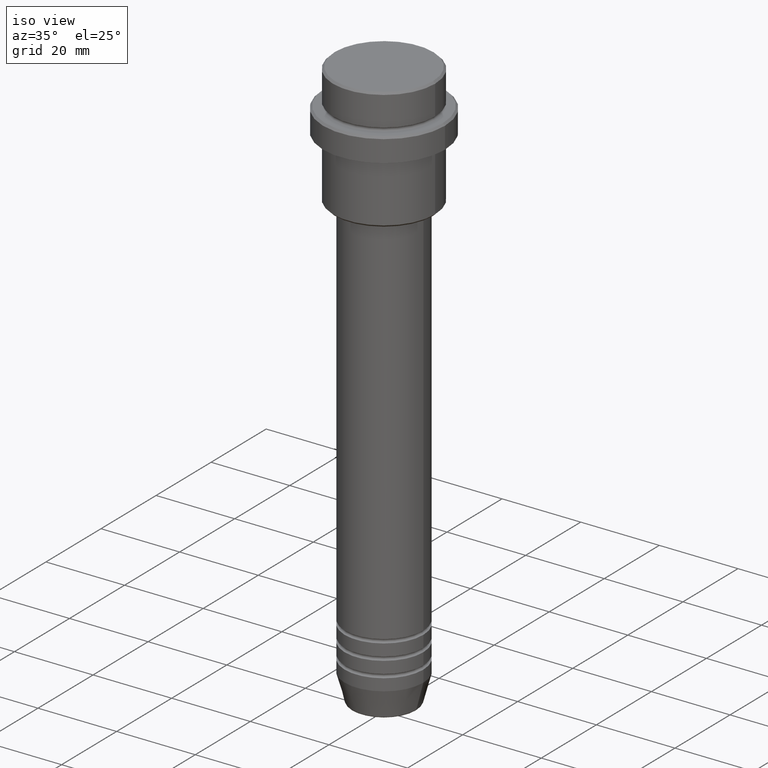
[diagram: clean part render]
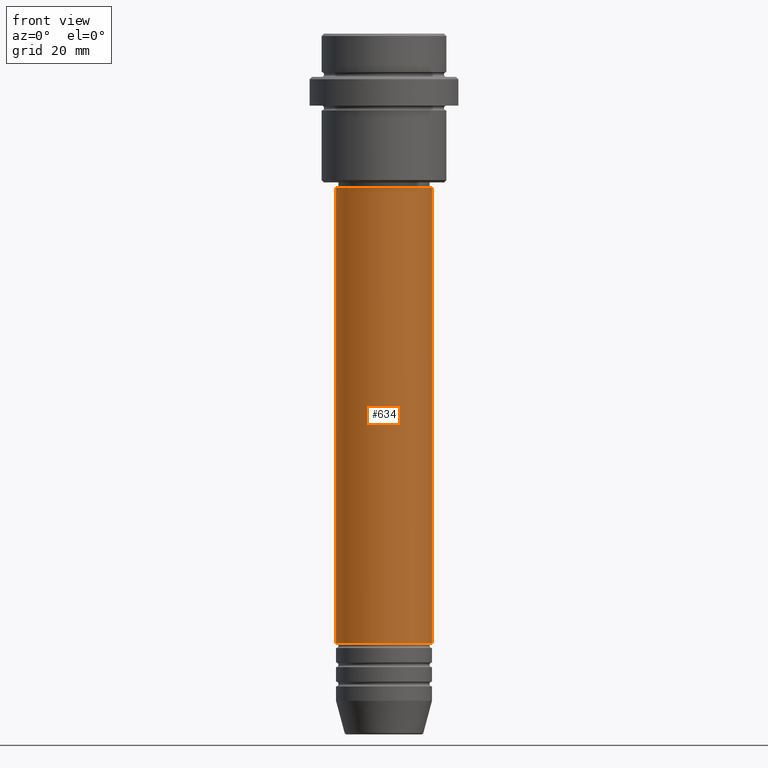
[diagram: tour spotlight — one face highlighted and labeled with its STEP entity id]
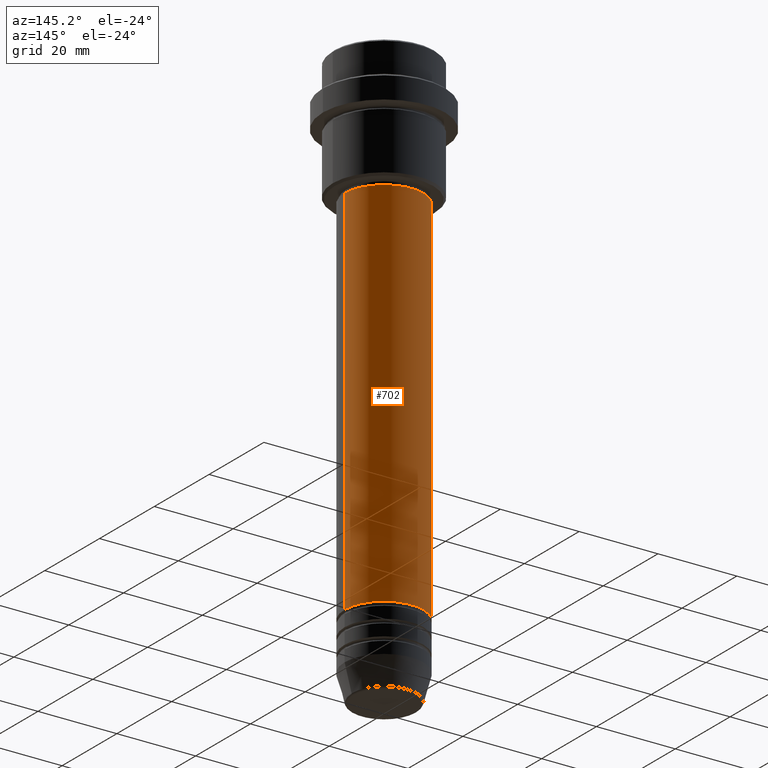
[diagram: tour spotlight — one face highlighted and labeled with its STEP entity id]
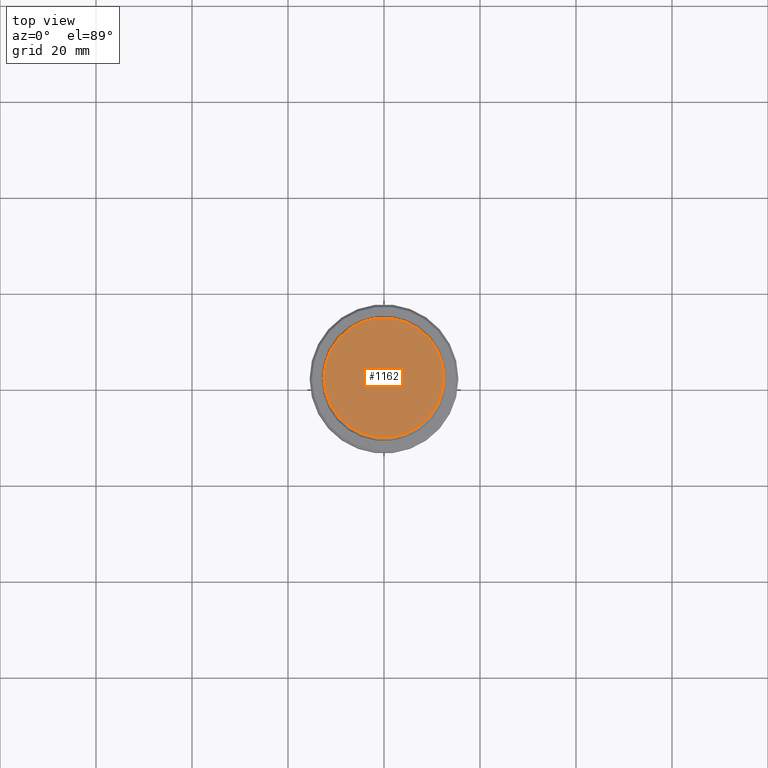
[diagram: tour spotlight — one face highlighted and labeled with its STEP entity id]
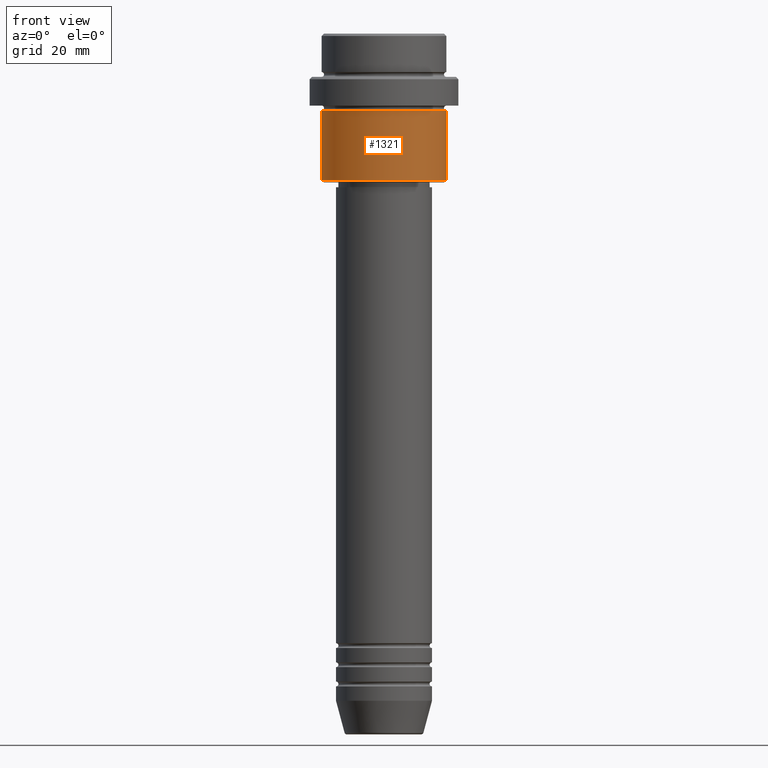
[diagram: tour spotlight — one face highlighted and labeled with its STEP entity id]
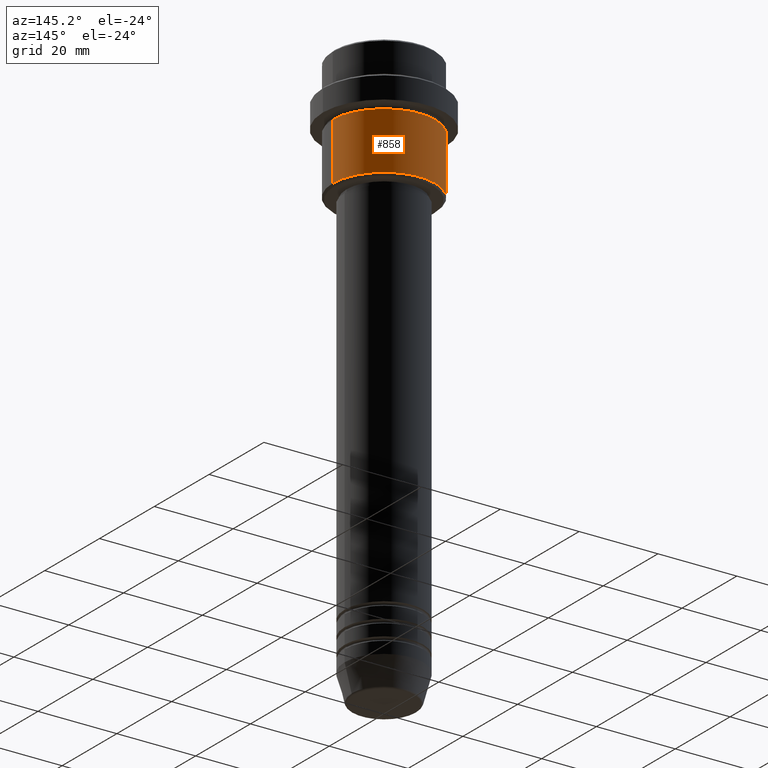
[diagram: tour spotlight — one face highlighted and labeled with its STEP entity id]
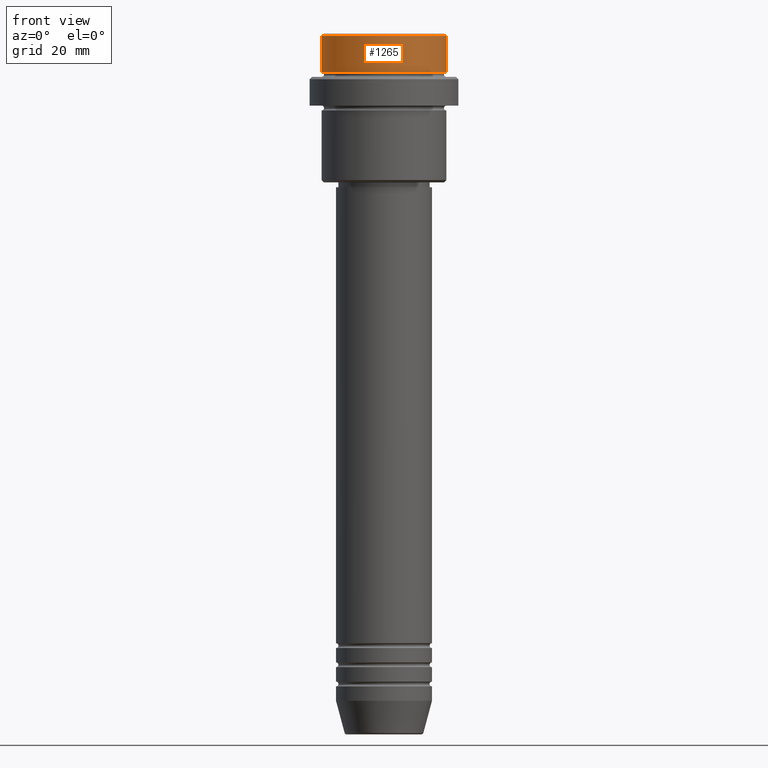
[diagram: tour spotlight — one face highlighted and labeled with its STEP entity id]
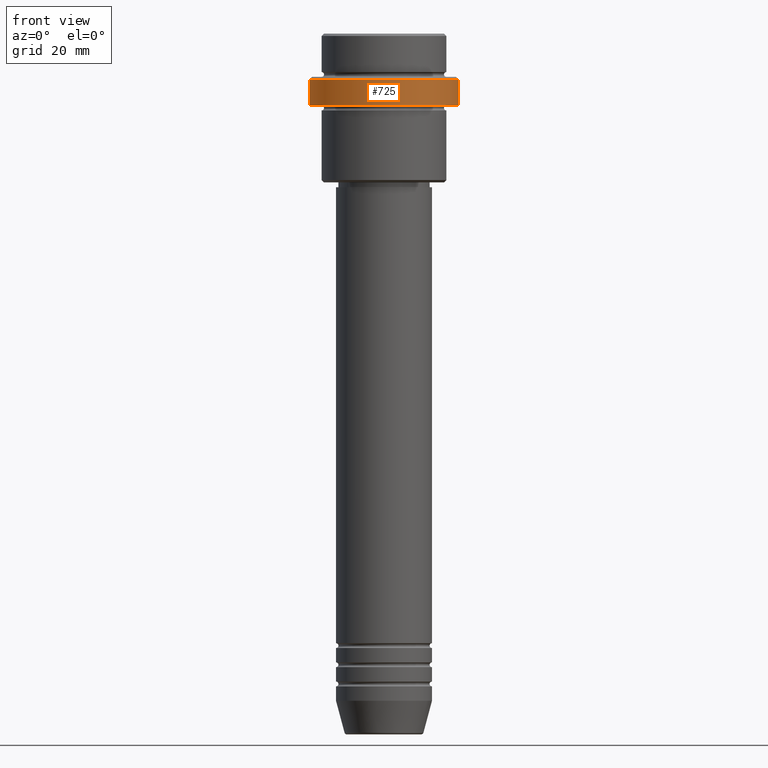
[diagram: tour spotlight — one face highlighted and labeled with its STEP entity id]
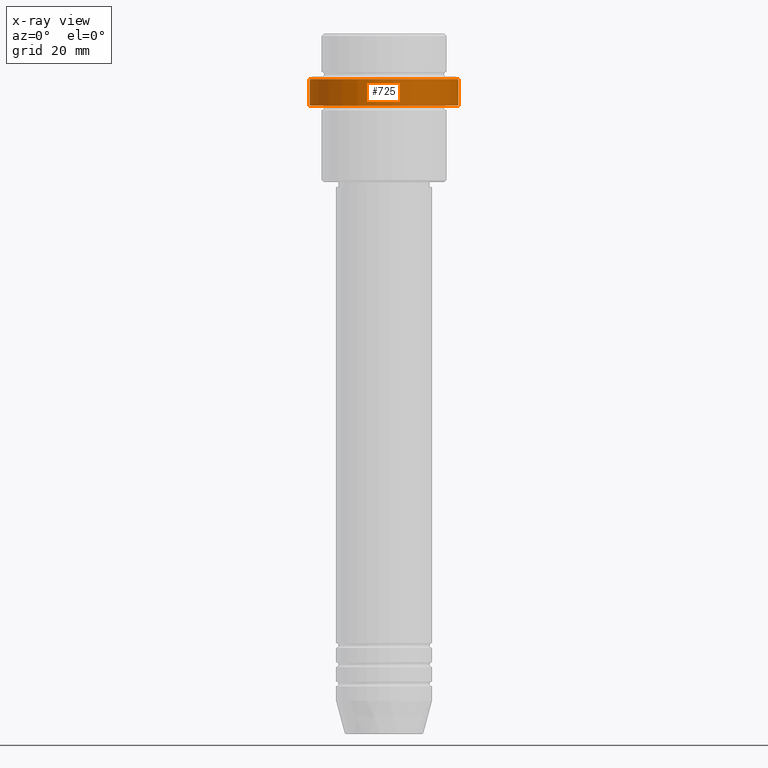
[diagram: x-ray of the same camera — body ghosted, this tour face saturated]
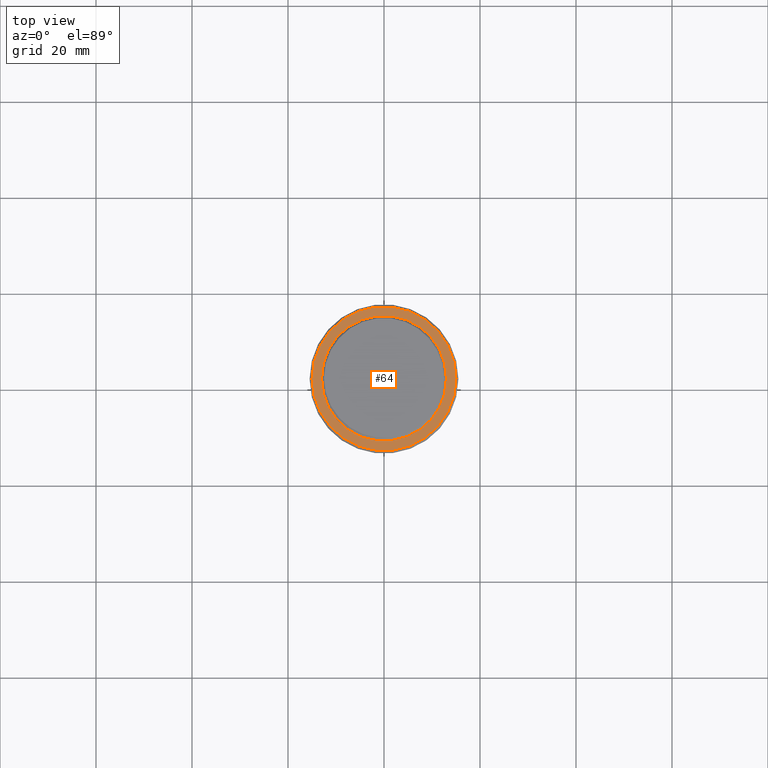
[diagram: tour spotlight — one face highlighted and labeled with its STEP entity id]
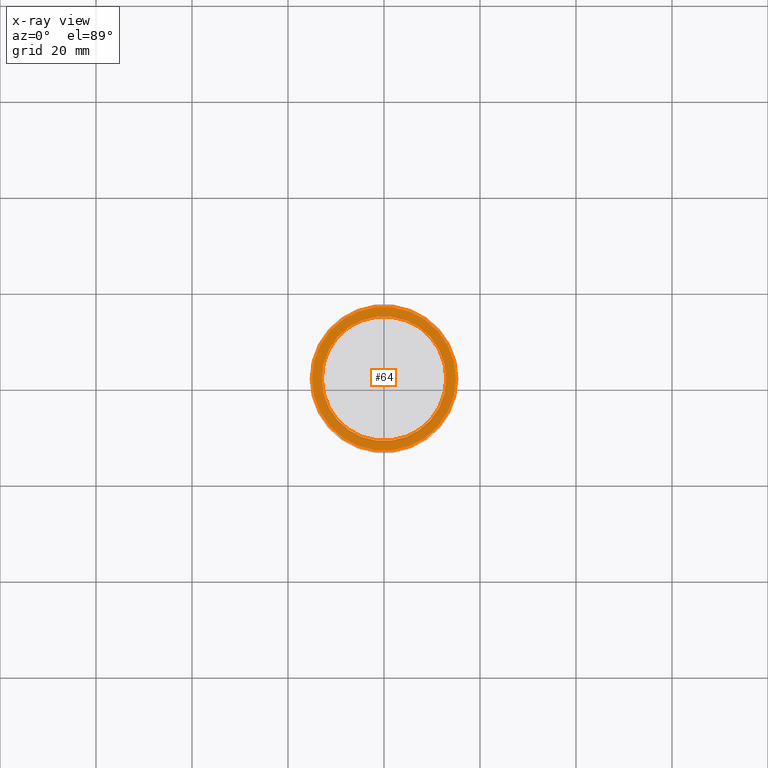
[diagram: x-ray of the same camera — body ghosted, this tour face saturated]
A machine part: a face-by-face anatomy tour. The part has 52 B-rep faces; the first image is the clean iso view, then the 8 largest visible faces are spotlighted one at a time (largest first), each with its STEP entity span.

Face 1 — front view, entity #634. In plain terms, the highlighted cylindrical surface (partial cylindrical patch) has radius 10 mm, axis along (-0, -0, 1).
Definition (entity closure, byte-faithful):
#15 = CARTESIAN_POINT ( 'NONE',  ( 10.00000000000000178, 0.000000000000000000, -32.00000000000000000 ) ) ;
#39 = CARTESIAN_POINT ( 'NONE',  ( 10.00000000000000000, 0.000000000000000000, -126.9999999999998863 ) ) ;
#56 = DIRECTION ( 'NONE',  ( -0.000000000000000000, -0.000000000000000000, 1.000000000000000000 ) ) ;
#93 = EDGE_LOOP ( 'NONE', ( #149, #246, #118, #751 ) ) ;
#107 = CARTESIAN_POINT ( 'NONE',  ( -10.00000000000000178, 1.224646799147353454E-15, -32.00000000000000000 ) ) ;
#118 = ORIENTED_EDGE ( 'NONE', *, *, #361, .T. ) ;
#149 = ORIENTED_EDGE ( 'NONE', *, *, #1086, .F. ) ;
#184 = LINE ( 'NONE', #823, #1223 ) ;
#192 = VECTOR ( 'NONE', #1067, 1000.000000000000000 ) ;
#204 = LINE ( 'NONE', #768, #192 ) ;
#246 = ORIENTED_EDGE ( 'NONE', *, *, #793, .T. ) ;
#314 = DIRECTION ( 'NONE',  ( 1.000000000000000000, 0.000000000000000000, 0.000000000000000000 ) ) ;
#361 = EDGE_CURVE ( 'NONE', #485, #795, #204, .T. ) ;
#391 = CARTESIAN_POINT ( 'NONE',  ( -10.00000000000000000, 1.224646799147353256E-15, -126.9999999999998863 ) ) ;
#392 = CARTESIAN_POINT ( 'NONE',  ( 0.000000000000000000, 0.000000000000000000, 0.000000000000000000 ) ) ;
#399 = DIRECTION ( 'NONE',  ( 1.000000000000000000, 0.000000000000000000, 0.000000000000000000 ) ) ;
#419 = DIRECTION ( 'NONE',  ( -0.000000000000000000, -0.000000000000000000, 1.000000000000000000 ) ) ;
#485 = VERTEX_POINT ( 'NONE', #39 ) ;
#507 = CARTESIAN_POINT ( 'NONE',  ( 0.000000000000000000, 0.000000000000000000, -32.00000000000000000 ) ) ;
#634 = ADVANCED_FACE ( 'NONE', ( #928 ), #1384, .T. ) ;
#641 = AXIS2_PLACEMENT_3D ( 'NONE', #507, #56, #832 ) ;
#723 = VERTEX_POINT ( 'NONE', #107 ) ;
#732 = DIRECTION ( 'NONE',  ( -0.000000000000000000, -0.000000000000000000, 1.000000000000000000 ) ) ;
#751 = ORIENTED_EDGE ( 'NONE', *, *, #1016, .F. ) ;
#768 = CARTESIAN_POINT ( 'NONE',  ( 10.00000000000000178, 0.000000000000000000, 0.000000000000000000 ) ) ;
#793 = EDGE_CURVE ( 'NONE', #1009, #485, #1216, .T. ) ;
#795 = VERTEX_POINT ( 'NONE', #15 ) ;
#823 = CARTESIAN_POINT ( 'NONE',  ( -10.00000000000000178, 1.224646799147353454E-15, 0.000000000000000000 ) ) ;
#832 = DIRECTION ( 'NONE',  ( 1.000000000000000000, 0.000000000000000000, 0.000000000000000000 ) ) ;
#868 = CARTESIAN_POINT ( 'NONE',  ( 0.000000000000000000, 0.000000000000000000, -126.9999999999998863 ) ) ;
#928 = FACE_OUTER_BOUND ( 'NONE', #93, .T. ) ;
#1009 = VERTEX_POINT ( 'NONE', #391 ) ;
#1016 = EDGE_CURVE ( 'NONE', #723, #795, #1077, .T. ) ;
#1036 = AXIS2_PLACEMENT_3D ( 'NONE', #868, #419, #314 ) ;
#1037 = DIRECTION ( 'NONE',  ( -0.000000000000000000, -0.000000000000000000, 1.000000000000000000 ) ) ;
#1067 = DIRECTION ( 'NONE',  ( -0.000000000000000000, -0.000000000000000000, 1.000000000000000000 ) ) ;
#1077 = CIRCLE ( 'NONE', #641, 10.00000000000000178 ) ;
#1086 = EDGE_CURVE ( 'NONE', #1009, #723, #184, .T. ) ;
#1216 = CIRCLE ( 'NONE', #1036, 10.00000000000000000 ) ;
#1223 = VECTOR ( 'NONE', #1037, 1000.000000000000000 ) ;
#1380 = AXIS2_PLACEMENT_3D ( 'NONE', #392, #732, #399 ) ;
#1384 = CYLINDRICAL_SURFACE ( 'NONE', #1380, 10.00000000000000178 ) ;

Face 2 — auxiliary view, entity #702. In plain terms, the highlighted cylindrical surface (partial cylindrical patch) has radius 10 mm, axis along (-0, -0, 1).
Definition (entity closure, byte-faithful):
#15 = CARTESIAN_POINT ( 'NONE',  ( 10.00000000000000178, 0.000000000000000000, -32.00000000000000000 ) ) ;
#39 = CARTESIAN_POINT ( 'NONE',  ( 10.00000000000000000, 0.000000000000000000, -126.9999999999998863 ) ) ;
#77 = AXIS2_PLACEMENT_3D ( 'NONE', #990, #535, #1091 ) ;
#107 = CARTESIAN_POINT ( 'NONE',  ( -10.00000000000000178, 1.224646799147353454E-15, -32.00000000000000000 ) ) ;
#123 = ORIENTED_EDGE ( 'NONE', *, *, #1257, .F. ) ;
#134 = CIRCLE ( 'NONE', #474, 10.00000000000000000 ) ;
#184 = LINE ( 'NONE', #823, #1223 ) ;
#192 = VECTOR ( 'NONE', #1067, 1000.000000000000000 ) ;
#204 = LINE ( 'NONE', #768, #192 ) ;
#219 = DIRECTION ( 'NONE',  ( -0.000000000000000000, -0.000000000000000000, 1.000000000000000000 ) ) ;
#361 = EDGE_CURVE ( 'NONE', #485, #795, #204, .T. ) ;
#391 = CARTESIAN_POINT ( 'NONE',  ( -10.00000000000000000, 1.224646799147353256E-15, -126.9999999999998863 ) ) ;
#474 = AXIS2_PLACEMENT_3D ( 'NONE', #847, #623, #1202 ) ;
#485 = VERTEX_POINT ( 'NONE', #39 ) ;
#522 = ORIENTED_EDGE ( 'NONE', *, *, #1220, .T. ) ;
#535 = DIRECTION ( 'NONE',  ( -0.000000000000000000, -0.000000000000000000, 1.000000000000000000 ) ) ;
#623 = DIRECTION ( 'NONE',  ( -0.000000000000000000, -0.000000000000000000, 1.000000000000000000 ) ) ;
#672 = CIRCLE ( 'NONE', #1271, 10.00000000000000178 ) ;
#702 = ADVANCED_FACE ( 'NONE', ( #739 ), #879, .T. ) ;
#723 = VERTEX_POINT ( 'NONE', #107 ) ;
#739 = FACE_OUTER_BOUND ( 'NONE', #1352, .T. ) ;
#768 = CARTESIAN_POINT ( 'NONE',  ( 10.00000000000000178, 0.000000000000000000, 0.000000000000000000 ) ) ;
#795 = VERTEX_POINT ( 'NONE', #15 ) ;
#823 = CARTESIAN_POINT ( 'NONE',  ( -10.00000000000000178, 1.224646799147353454E-15, 0.000000000000000000 ) ) ;
#847 = CARTESIAN_POINT ( 'NONE',  ( 0.000000000000000000, 0.000000000000000000, -126.9999999999998863 ) ) ;
#866 = CARTESIAN_POINT ( 'NONE',  ( 0.000000000000000000, 0.000000000000000000, -32.00000000000000000 ) ) ;
#879 = CYLINDRICAL_SURFACE ( 'NONE', #77, 10.00000000000000178 ) ;
#990 = CARTESIAN_POINT ( 'NONE',  ( 0.000000000000000000, 0.000000000000000000, 0.000000000000000000 ) ) ;
#1009 = VERTEX_POINT ( 'NONE', #391 ) ;
#1037 = DIRECTION ( 'NONE',  ( -0.000000000000000000, -0.000000000000000000, 1.000000000000000000 ) ) ;
#1067 = DIRECTION ( 'NONE',  ( -0.000000000000000000, -0.000000000000000000, 1.000000000000000000 ) ) ;
#1086 = EDGE_CURVE ( 'NONE', #1009, #723, #184, .T. ) ;
#1089 = DIRECTION ( 'NONE',  ( 1.000000000000000000, 0.000000000000000000, 0.000000000000000000 ) ) ;
#1091 = DIRECTION ( 'NONE',  ( 1.000000000000000000, 0.000000000000000000, 0.000000000000000000 ) ) ;
#1200 = ORIENTED_EDGE ( 'NONE', *, *, #361, .F. ) ;
#1202 = DIRECTION ( 'NONE',  ( 1.000000000000000000, 0.000000000000000000, 0.000000000000000000 ) ) ;
#1220 = EDGE_CURVE ( 'NONE', #485, #1009, #134, .T. ) ;
#1223 = VECTOR ( 'NONE', #1037, 1000.000000000000000 ) ;
#1257 = EDGE_CURVE ( 'NONE', #795, #723, #672, .T. ) ;
#1271 = AXIS2_PLACEMENT_3D ( 'NONE', #866, #219, #1089 ) ;
#1313 = ORIENTED_EDGE ( 'NONE', *, *, #1086, .T. ) ;
#1352 = EDGE_LOOP ( 'NONE', ( #522, #1313, #123, #1200 ) ) ;

Face 3 — top view, entity #1162. In plain terms, the highlighted planar face has unit normal (0, -0, 1).
Definition (entity closure, byte-faithful):
#31 = VERTEX_POINT ( 'NONE', #34 ) ;
#34 = CARTESIAN_POINT ( 'NONE',  ( -12.50000000000001243, 0.000000000000000000, 0.000000000000000000 ) ) ;
#90 = CARTESIAN_POINT ( 'NONE',  ( 0.000000000000000000, 0.000000000000000000, 0.000000000000000000 ) ) ;
#133 = CARTESIAN_POINT ( 'NONE',  ( 12.50000000000001243, 1.561424668912876097E-15, 0.000000000000000000 ) ) ;
#155 = ORIENTED_EDGE ( 'NONE', *, *, #957, .T. ) ;
#299 = DIRECTION ( 'NONE',  ( 1.000000000000000000, 0.000000000000000000, 0.000000000000000000 ) ) ;
#320 = DIRECTION ( 'NONE',  ( 1.000000000000000000, 0.000000000000000000, 0.000000000000000000 ) ) ;
#370 = CIRCLE ( 'NONE', #1169, 12.50000000000001243 ) ;
#442 = FACE_OUTER_BOUND ( 'NONE', #875, .T. ) ;
#458 = DIRECTION ( 'NONE',  ( -0.000000000000000000, -0.000000000000000000, 1.000000000000000000 ) ) ;
#473 = ORIENTED_EDGE ( 'NONE', *, *, #721, .T. ) ;
#636 = CARTESIAN_POINT ( 'NONE',  ( 0.000000000000000000, 0.000000000000000000, 0.000000000000000000 ) ) ;
#716 = CIRCLE ( 'NONE', #1288, 12.50000000000001243 ) ;
#721 = EDGE_CURVE ( 'NONE', #31, #1304, #370, .T. ) ;
#746 = PLANE ( 'NONE',  #767 ) ;
#765 = DIRECTION ( 'NONE',  ( -0.000000000000000000, -0.000000000000000000, 1.000000000000000000 ) ) ;
#767 = AXIS2_PLACEMENT_3D ( 'NONE', #90, #948, #320 ) ;
#875 = EDGE_LOOP ( 'NONE', ( #473, #155 ) ) ;
#948 = DIRECTION ( 'NONE',  ( 0.000000000000000000, -0.000000000000000000, 1.000000000000000000 ) ) ;
#957 = EDGE_CURVE ( 'NONE', #1304, #31, #716, .T. ) ;
#1133 = CARTESIAN_POINT ( 'NONE',  ( 0.000000000000000000, 0.000000000000000000, 0.000000000000000000 ) ) ;
#1162 = ADVANCED_FACE ( 'NONE', ( #442 ), #746, .T. ) ;
#1169 = AXIS2_PLACEMENT_3D ( 'NONE', #636, #765, #299 ) ;
#1288 = AXIS2_PLACEMENT_3D ( 'NONE', #1133, #458, #1335 ) ;
#1304 = VERTEX_POINT ( 'NONE', #133 ) ;
#1335 = DIRECTION ( 'NONE',  ( 1.000000000000000000, 0.000000000000000000, 0.000000000000000000 ) ) ;

Face 4 — front view, entity #1321. In plain terms, the highlighted cylindrical surface (partial cylindrical patch) has radius 13 mm, axis along (-0, -0, 1).
Definition (entity closure, byte-faithful):
#14 = CIRCLE ( 'NONE', #921, 13.00000000000000000 ) ;
#24 = EDGE_LOOP ( 'NONE', ( #1140, #95, #883, #947 ) ) ;
#28 = DIRECTION ( 'NONE',  ( -1.000000000000000000, 0.000000000000000000, 0.000000000000000000 ) ) ;
#40 = VECTOR ( 'NONE', #597, 1000.000000000000000 ) ;
#79 = CARTESIAN_POINT ( 'NONE',  ( -13.00000000000000000, 1.592040838891559095E-15, -30.49999999999996447 ) ) ;
#82 = EDGE_CURVE ( 'NONE', #995, #1341, #482, .T. ) ;
#95 = ORIENTED_EDGE ( 'NONE', *, *, #923, .T. ) ;
#172 = LINE ( 'NONE', #398, #40 ) ;
#224 = CYLINDRICAL_SURFACE ( 'NONE', #1015, 13.00000000000000000 ) ;
#286 = AXIS2_PLACEMENT_3D ( 'NONE', #418, #1180, #771 ) ;
#300 = CARTESIAN_POINT ( 'NONE',  ( -13.00000000000000000, 1.592040838891559095E-15, 0.000000000000000000 ) ) ;
#398 = CARTESIAN_POINT ( 'NONE',  ( 13.00000000000000000, 0.000000000000000000, 0.000000000000000000 ) ) ;
#418 = CARTESIAN_POINT ( 'NONE',  ( 0.000000000000000000, 0.000000000000000000, -16.00000000000000000 ) ) ;
#477 = DIRECTION ( 'NONE',  ( -0.000000000000000000, -0.000000000000000000, 1.000000000000000000 ) ) ;
#482 = LINE ( 'NONE', #300, #1332 ) ;
#564 = CARTESIAN_POINT ( 'NONE',  ( -13.00000000000000000, 1.592040838891559095E-15, -16.00000000000000000 ) ) ;
#580 = FACE_OUTER_BOUND ( 'NONE', #24, .T. ) ;
#597 = DIRECTION ( 'NONE',  ( -0.000000000000000000, -0.000000000000000000, 1.000000000000000000 ) ) ;
#603 = CIRCLE ( 'NONE', #286, 13.00000000000000000 ) ;
#627 = DIRECTION ( 'NONE',  ( -0.000000000000000000, -0.000000000000000000, 1.000000000000000000 ) ) ;
#674 = CARTESIAN_POINT ( 'NONE',  ( 0.000000000000000000, 0.000000000000000000, 0.000000000000000000 ) ) ;
#687 = DIRECTION ( 'NONE',  ( -0.000000000000000000, -0.000000000000000000, 1.000000000000000000 ) ) ;
#771 = DIRECTION ( 'NONE',  ( 1.000000000000000000, 0.000000000000000000, 0.000000000000000000 ) ) ;
#883 = ORIENTED_EDGE ( 'NONE', *, *, #1024, .T. ) ;
#921 = AXIS2_PLACEMENT_3D ( 'NONE', #1343, #477, #28 ) ;
#923 = EDGE_CURVE ( 'NONE', #995, #1287, #14, .T. ) ;
#947 = ORIENTED_EDGE ( 'NONE', *, *, #1136, .F. ) ;
#995 = VERTEX_POINT ( 'NONE', #79 ) ;
#1015 = AXIS2_PLACEMENT_3D ( 'NONE', #674, #687, #1095 ) ;
#1024 = EDGE_CURVE ( 'NONE', #1287, #1159, #172, .T. ) ;
#1095 = DIRECTION ( 'NONE',  ( 1.000000000000000000, 0.000000000000000000, 0.000000000000000000 ) ) ;
#1136 = EDGE_CURVE ( 'NONE', #1341, #1159, #603, .T. ) ;
#1140 = ORIENTED_EDGE ( 'NONE', *, *, #82, .F. ) ;
#1159 = VERTEX_POINT ( 'NONE', #1193 ) ;
#1180 = DIRECTION ( 'NONE',  ( -0.000000000000000000, -0.000000000000000000, 1.000000000000000000 ) ) ;
#1193 = CARTESIAN_POINT ( 'NONE',  ( 13.00000000000000000, 0.000000000000000000, -16.00000000000000000 ) ) ;
#1287 = VERTEX_POINT ( 'NONE', #1357 ) ;
#1321 = ADVANCED_FACE ( 'NONE', ( #580 ), #224, .T. ) ;
#1332 = VECTOR ( 'NONE', #627, 1000.000000000000000 ) ;
#1341 = VERTEX_POINT ( 'NONE', #564 ) ;
#1343 = CARTESIAN_POINT ( 'NONE',  ( 0.000000000000000000, 0.000000000000000000, -30.49999999999996447 ) ) ;
#1357 = CARTESIAN_POINT ( 'NONE',  ( 13.00000000000000000, 0.000000000000000000, -30.49999999999996447 ) ) ;

Face 5 — auxiliary view, entity #858. In plain terms, the highlighted cylindrical surface (partial cylindrical patch) has radius 13 mm, axis along (-0, -0, 1).
Definition (entity closure, byte-faithful):
#21 = FACE_OUTER_BOUND ( 'NONE', #876, .T. ) ;
#40 = VECTOR ( 'NONE', #597, 1000.000000000000000 ) ;
#79 = CARTESIAN_POINT ( 'NONE',  ( -13.00000000000000000, 1.592040838891559095E-15, -30.49999999999996447 ) ) ;
#82 = EDGE_CURVE ( 'NONE', #995, #1341, #482, .T. ) ;
#106 = DIRECTION ( 'NONE',  ( -1.000000000000000000, 0.000000000000000000, 0.000000000000000000 ) ) ;
#151 = AXIS2_PLACEMENT_3D ( 'NONE', #932, #946, #950 ) ;
#172 = LINE ( 'NONE', #398, #40 ) ;
#181 = AXIS2_PLACEMENT_3D ( 'NONE', #1411, #423, #106 ) ;
#276 = ORIENTED_EDGE ( 'NONE', *, *, #82, .T. ) ;
#300 = CARTESIAN_POINT ( 'NONE',  ( -13.00000000000000000, 1.592040838891559095E-15, 0.000000000000000000 ) ) ;
#336 = ORIENTED_EDGE ( 'NONE', *, *, #1024, .F. ) ;
#398 = CARTESIAN_POINT ( 'NONE',  ( 13.00000000000000000, 0.000000000000000000, 0.000000000000000000 ) ) ;
#423 = DIRECTION ( 'NONE',  ( -0.000000000000000000, -0.000000000000000000, 1.000000000000000000 ) ) ;
#482 = LINE ( 'NONE', #300, #1332 ) ;
#497 = CIRCLE ( 'NONE', #181, 13.00000000000000000 ) ;
#530 = AXIS2_PLACEMENT_3D ( 'NONE', #699, #1119, #794 ) ;
#564 = CARTESIAN_POINT ( 'NONE',  ( -13.00000000000000000, 1.592040838891559095E-15, -16.00000000000000000 ) ) ;
#596 = CIRCLE ( 'NONE', #151, 13.00000000000000000 ) ;
#597 = DIRECTION ( 'NONE',  ( -0.000000000000000000, -0.000000000000000000, 1.000000000000000000 ) ) ;
#627 = DIRECTION ( 'NONE',  ( -0.000000000000000000, -0.000000000000000000, 1.000000000000000000 ) ) ;
#651 = EDGE_CURVE ( 'NONE', #1159, #1341, #596, .T. ) ;
#699 = CARTESIAN_POINT ( 'NONE',  ( 0.000000000000000000, 0.000000000000000000, 0.000000000000000000 ) ) ;
#707 = ORIENTED_EDGE ( 'NONE', *, *, #1231, .T. ) ;
#794 = DIRECTION ( 'NONE',  ( 1.000000000000000000, 0.000000000000000000, 0.000000000000000000 ) ) ;
#858 = ADVANCED_FACE ( 'NONE', ( #21 ), #1127, .T. ) ;
#876 = EDGE_LOOP ( 'NONE', ( #707, #276, #1000, #336 ) ) ;
#932 = CARTESIAN_POINT ( 'NONE',  ( 0.000000000000000000, 0.000000000000000000, -16.00000000000000000 ) ) ;
#946 = DIRECTION ( 'NONE',  ( -0.000000000000000000, -0.000000000000000000, 1.000000000000000000 ) ) ;
#950 = DIRECTION ( 'NONE',  ( 1.000000000000000000, 0.000000000000000000, 0.000000000000000000 ) ) ;
#995 = VERTEX_POINT ( 'NONE', #79 ) ;
#1000 = ORIENTED_EDGE ( 'NONE', *, *, #651, .F. ) ;
#1024 = EDGE_CURVE ( 'NONE', #1287, #1159, #172, .T. ) ;
#1119 = DIRECTION ( 'NONE',  ( -0.000000000000000000, -0.000000000000000000, 1.000000000000000000 ) ) ;
#1127 = CYLINDRICAL_SURFACE ( 'NONE', #530, 13.00000000000000000 ) ;
#1159 = VERTEX_POINT ( 'NONE', #1193 ) ;
#1193 = CARTESIAN_POINT ( 'NONE',  ( 13.00000000000000000, 0.000000000000000000, -16.00000000000000000 ) ) ;
#1231 = EDGE_CURVE ( 'NONE', #1287, #995, #497, .T. ) ;
#1287 = VERTEX_POINT ( 'NONE', #1357 ) ;
#1332 = VECTOR ( 'NONE', #627, 1000.000000000000000 ) ;
#1341 = VERTEX_POINT ( 'NONE', #564 ) ;
#1357 = CARTESIAN_POINT ( 'NONE',  ( 13.00000000000000000, 0.000000000000000000, -30.49999999999996447 ) ) ;
#1411 = CARTESIAN_POINT ( 'NONE',  ( 0.000000000000000000, 0.000000000000000000, -30.49999999999996447 ) ) ;

Face 6 — front view, entity #1265. In plain terms, the highlighted cylindrical surface (partial cylindrical patch) has radius 13 mm, axis along (-0, -0, 1).
Definition (entity closure, byte-faithful):
#45 = CARTESIAN_POINT ( 'NONE',  ( -12.99999999999999822, 1.592040838891558898E-15, 0.000000000000000000 ) ) ;
#115 = FACE_OUTER_BOUND ( 'NONE', #796, .T. ) ;
#125 = DIRECTION ( 'NONE',  ( 1.000000000000000000, 0.000000000000000000, 0.000000000000000000 ) ) ;
#251 = ORIENTED_EDGE ( 'NONE', *, *, #1358, .T. ) ;
#360 = DIRECTION ( 'NONE',  ( -0.000000000000000000, -0.000000000000000000, 1.000000000000000000 ) ) ;
#401 = ORIENTED_EDGE ( 'NONE', *, *, #559, .T. ) ;
#440 = EDGE_CURVE ( 'NONE', #1354, #797, #999, .T. ) ;
#545 = CYLINDRICAL_SURFACE ( 'NONE', #1039, 12.99999999999999822 ) ;
#548 = VERTEX_POINT ( 'NONE', #1045 ) ;
#554 = CARTESIAN_POINT ( 'NONE',  ( 0.000000000000000000, 0.000000000000000000, -7.999999999999998224 ) ) ;
#559 = EDGE_CURVE ( 'NONE', #548, #658, #1279, .T. ) ;
#581 = CIRCLE ( 'NONE', #1060, 12.99999999999999822 ) ;
#618 = DIRECTION ( 'NONE',  ( -0.000000000000000000, -0.000000000000000000, 1.000000000000000000 ) ) ;
#658 = VERTEX_POINT ( 'NONE', #818 ) ;
#714 = VECTOR ( 'NONE', #618, 1000.000000000000000 ) ;
#728 = ORIENTED_EDGE ( 'NONE', *, *, #440, .F. ) ;
#792 = AXIS2_PLACEMENT_3D ( 'NONE', #886, #1325, #125 ) ;
#796 = EDGE_LOOP ( 'NONE', ( #728, #1219, #401, #251 ) ) ;
#797 = VERTEX_POINT ( 'NONE', #1097 ) ;
#808 = DIRECTION ( 'NONE',  ( -0.000000000000000000, -0.000000000000000000, 1.000000000000000000 ) ) ;
#818 = CARTESIAN_POINT ( 'NONE',  ( 12.99999999999999822, 0.000000000000000000, -0.4999999999999900080 ) ) ;
#845 = CARTESIAN_POINT ( 'NONE',  ( 12.99999999999999822, 0.000000000000000000, 0.000000000000000000 ) ) ;
#886 = CARTESIAN_POINT ( 'NONE',  ( 0.000000000000000000, 0.000000000000000000, -0.4999999999999900080 ) ) ;
#979 = CARTESIAN_POINT ( 'NONE',  ( 0.000000000000000000, 0.000000000000000000, 0.000000000000000000 ) ) ;
#999 = LINE ( 'NONE', #45, #1213 ) ;
#1039 = AXIS2_PLACEMENT_3D ( 'NONE', #979, #808, #1330 ) ;
#1045 = CARTESIAN_POINT ( 'NONE',  ( 12.99999999999999822, 0.000000000000000000, -7.999999999999998224 ) ) ;
#1060 = AXIS2_PLACEMENT_3D ( 'NONE', #554, #360, #1126 ) ;
#1097 = CARTESIAN_POINT ( 'NONE',  ( -12.99999999999999822, 1.592040838891558898E-15, -0.4999999999999900080 ) ) ;
#1122 = DIRECTION ( 'NONE',  ( -0.000000000000000000, -0.000000000000000000, 1.000000000000000000 ) ) ;
#1126 = DIRECTION ( 'NONE',  ( 1.000000000000000000, 0.000000000000000000, 0.000000000000000000 ) ) ;
#1213 = VECTOR ( 'NONE', #1122, 1000.000000000000000 ) ;
#1219 = ORIENTED_EDGE ( 'NONE', *, *, #1365, .T. ) ;
#1265 = ADVANCED_FACE ( 'NONE', ( #115 ), #545, .T. ) ;
#1279 = LINE ( 'NONE', #845, #714 ) ;
#1325 = DIRECTION ( 'NONE',  ( 0.000000000000000000, 0.000000000000000000, -1.000000000000000000 ) ) ;
#1330 = DIRECTION ( 'NONE',  ( 1.000000000000000000, 0.000000000000000000, 0.000000000000000000 ) ) ;
#1349 = CARTESIAN_POINT ( 'NONE',  ( -12.99999999999999822, 1.592040838891558898E-15, -7.999999999999998224 ) ) ;
#1354 = VERTEX_POINT ( 'NONE', #1349 ) ;
#1358 = EDGE_CURVE ( 'NONE', #658, #797, #1412, .T. ) ;
#1365 = EDGE_CURVE ( 'NONE', #1354, #548, #581, .T. ) ;
#1412 = CIRCLE ( 'NONE', #792, 12.99999999999999822 ) ;

Face 7 — front view, entity #725. An x-ray twin of the same camera follows (body ghosted, this face saturated) — the face is partly hidden behind the body. In plain terms, the highlighted cylindrical surface (partial cylindrical patch) has radius 15.5 mm, axis along (-0, -0, 1).
Definition (entity closure, byte-faithful):
#2 = DIRECTION ( 'NONE',  ( -0.000000000000000000, -0.000000000000000000, 1.000000000000000000 ) ) ;
#18 = CARTESIAN_POINT ( 'NONE',  ( 15.50000000000000000, 0.000000000000000000, 0.000000000000000000 ) ) ;
#43 = LINE ( 'NONE', #18, #885 ) ;
#92 = DIRECTION ( 'NONE',  ( 1.000000000000000000, 0.000000000000000000, 0.000000000000000000 ) ) ;
#112 = ORIENTED_EDGE ( 'NONE', *, *, #812, .T. ) ;
#114 = VERTEX_POINT ( 'NONE', #1062 ) ;
#287 = CIRCLE ( 'NONE', #1106, 15.50000000000000000 ) ;
#323 = DIRECTION ( 'NONE',  ( -0.000000000000000000, -0.000000000000000000, 1.000000000000000000 ) ) ;
#344 = AXIS2_PLACEMENT_3D ( 'NONE', #1066, #1406, #92 ) ;
#354 = CARTESIAN_POINT ( 'NONE',  ( -15.50000000000000000, 1.898202538678397557E-15, -9.499999999999984013 ) ) ;
#430 = CARTESIAN_POINT ( 'NONE',  ( -15.50000000000000000, 1.898202538678397557E-15, 0.000000000000000000 ) ) ;
#475 = DIRECTION ( 'NONE',  ( -0.000000000000000000, -0.000000000000000000, 1.000000000000000000 ) ) ;
#513 = DIRECTION ( 'NONE',  ( 0.000000000000000000, 0.000000000000000000, -1.000000000000000000 ) ) ;
#542 = CARTESIAN_POINT ( 'NONE',  ( 0.000000000000000000, 0.000000000000000000, 0.000000000000000000 ) ) ;
#630 = FACE_OUTER_BOUND ( 'NONE', #1017, .T. ) ;
#706 = DIRECTION ( 'NONE',  ( 1.000000000000000000, 0.000000000000000000, 0.000000000000000000 ) ) ;
#724 = CARTESIAN_POINT ( 'NONE',  ( 15.50000000000000000, 0.000000000000000000, -15.00000000000000000 ) ) ;
#725 = ADVANCED_FACE ( 'NONE', ( #630 ), #1075, .T. ) ;
#729 = CARTESIAN_POINT ( 'NONE',  ( -15.50000000000000000, 1.898202538678397557E-15, -15.00000000000000000 ) ) ;
#731 = AXIS2_PLACEMENT_3D ( 'NONE', #542, #323, #1205 ) ;
#737 = LINE ( 'NONE', #430, #1130 ) ;
#776 = ORIENTED_EDGE ( 'NONE', *, *, #1317, .T. ) ;
#812 = EDGE_CURVE ( 'NONE', #1090, #1098, #1172, .T. ) ;
#841 = VERTEX_POINT ( 'NONE', #354 ) ;
#885 = VECTOR ( 'NONE', #475, 1000.000000000000000 ) ;
#1017 = EDGE_LOOP ( 'NONE', ( #1234, #112, #776, #1028 ) ) ;
#1028 = ORIENTED_EDGE ( 'NONE', *, *, #1064, .T. ) ;
#1043 = CARTESIAN_POINT ( 'NONE',  ( 0.000000000000000000, 0.000000000000000000, -9.499999999999984013 ) ) ;
#1062 = CARTESIAN_POINT ( 'NONE',  ( 15.50000000000000000, 0.000000000000000000, -9.499999999999984013 ) ) ;
#1064 = EDGE_CURVE ( 'NONE', #114, #841, #287, .T. ) ;
#1066 = CARTESIAN_POINT ( 'NONE',  ( 0.000000000000000000, 0.000000000000000000, -15.00000000000000000 ) ) ;
#1075 = CYLINDRICAL_SURFACE ( 'NONE', #731, 15.50000000000000000 ) ;
#1090 = VERTEX_POINT ( 'NONE', #729 ) ;
#1098 = VERTEX_POINT ( 'NONE', #724 ) ;
#1106 = AXIS2_PLACEMENT_3D ( 'NONE', #1043, #513, #706 ) ;
#1130 = VECTOR ( 'NONE', #2, 1000.000000000000000 ) ;
#1172 = CIRCLE ( 'NONE', #344, 15.50000000000000000 ) ;
#1205 = DIRECTION ( 'NONE',  ( 1.000000000000000000, 0.000000000000000000, 0.000000000000000000 ) ) ;
#1234 = ORIENTED_EDGE ( 'NONE', *, *, #1246, .F. ) ;
#1246 = EDGE_CURVE ( 'NONE', #1090, #841, #737, .T. ) ;
#1317 = EDGE_CURVE ( 'NONE', #1098, #114, #43, .T. ) ;
#1406 = DIRECTION ( 'NONE',  ( -0.000000000000000000, -0.000000000000000000, 1.000000000000000000 ) ) ;

Face 8 — top view, entity #64. An x-ray twin of the same camera follows (body ghosted, this face saturated) — the face is partly hidden behind the body. In plain terms, the highlighted planar face has unit normal (0, -0, 1).
Definition (entity closure, byte-faithful):
#36 = CIRCLE ( 'NONE', #830, 12.99999999999999467 ) ;
#64 = ADVANCED_FACE ( 'NONE', ( #412, #741 ), #264, .T. ) ;
#70 = EDGE_CURVE ( 'NONE', #647, #675, #779, .T. ) ;
#102 = CARTESIAN_POINT ( 'NONE',  ( 0.000000000000000000, 0.000000000000000000, -9.000000000000000000 ) ) ;
#168 = CARTESIAN_POINT ( 'NONE',  ( 0.000000000000000000, 0.000000000000000000, -9.000000000000000000 ) ) ;
#185 = ORIENTED_EDGE ( 'NONE', *, *, #349, .T. ) ;
#196 = ORIENTED_EDGE ( 'NONE', *, *, #504, .T. ) ;
#264 = PLANE ( 'NONE',  #980 ) ;
#273 = DIRECTION ( 'NONE',  ( 1.000000000000000000, 0.000000000000000000, 0.000000000000000000 ) ) ;
#328 = ORIENTED_EDGE ( 'NONE', *, *, #70, .T. ) ;
#349 = EDGE_CURVE ( 'NONE', #675, #647, #36, .T. ) ;
#409 = CARTESIAN_POINT ( 'NONE',  ( -15.00000000000001421, 0.000000000000000000, -9.000000000000000000 ) ) ;
#412 = FACE_OUTER_BOUND ( 'NONE', #444, .T. ) ;
#436 = AXIS2_PLACEMENT_3D ( 'NONE', #102, #555, #645 ) ;
#444 = EDGE_LOOP ( 'NONE', ( #196, #686 ) ) ;
#467 = AXIS2_PLACEMENT_3D ( 'NONE', #168, #909, #1107 ) ;
#504 = EDGE_CURVE ( 'NONE', #1158, #640, #1286, .T. ) ;
#518 = CARTESIAN_POINT ( 'NONE',  ( 15.00000000000001421, 1.867586368699714559E-15, -9.000000000000000000 ) ) ;
#549 = CARTESIAN_POINT ( 'NONE',  ( 0.000000000000000000, 0.000000000000000000, -9.000000000000000000 ) ) ;
#555 = DIRECTION ( 'NONE',  ( -0.000000000000000000, -0.000000000000000000, 1.000000000000000000 ) ) ;
#632 = DIRECTION ( 'NONE',  ( 1.000000000000000000, 0.000000000000000000, 0.000000000000000000 ) ) ;
#640 = VERTEX_POINT ( 'NONE', #518 ) ;
#645 = DIRECTION ( 'NONE',  ( 1.000000000000000000, 0.000000000000000000, 0.000000000000000000 ) ) ;
#647 = VERTEX_POINT ( 'NONE', #1151 ) ;
#666 = DIRECTION ( 'NONE',  ( 1.000000000000000000, 0.000000000000000000, 0.000000000000000000 ) ) ;
#675 = VERTEX_POINT ( 'NONE', #1141 ) ;
#686 = ORIENTED_EDGE ( 'NONE', *, *, #692, .T. ) ;
#692 = EDGE_CURVE ( 'NONE', #640, #1158, #1403, .T. ) ;
#713 = DIRECTION ( 'NONE',  ( 0.000000000000000000, -0.000000000000000000, 1.000000000000000000 ) ) ;
#741 = FACE_BOUND ( 'NONE', #1170, .T. ) ;
#779 = CIRCLE ( 'NONE', #1031, 12.99999999999999467 ) ;
#830 = AXIS2_PLACEMENT_3D ( 'NONE', #549, #1078, #632 ) ;
#909 = DIRECTION ( 'NONE',  ( -0.000000000000000000, -0.000000000000000000, 1.000000000000000000 ) ) ;
#980 = AXIS2_PLACEMENT_3D ( 'NONE', #1253, #713, #273 ) ;
#1031 = AXIS2_PLACEMENT_3D ( 'NONE', #1149, #1381, #666 ) ;
#1078 = DIRECTION ( 'NONE',  ( 0.000000000000000000, 0.000000000000000000, -1.000000000000000000 ) ) ;
#1107 = DIRECTION ( 'NONE',  ( 1.000000000000000000, 0.000000000000000000, 0.000000000000000000 ) ) ;
#1141 = CARTESIAN_POINT ( 'NONE',  ( 12.99999999999999467, 0.000000000000000000, -9.000000000000000000 ) ) ;
#1149 = CARTESIAN_POINT ( 'NONE',  ( 0.000000000000000000, 0.000000000000000000, -9.000000000000000000 ) ) ;
#1151 = CARTESIAN_POINT ( 'NONE',  ( -12.99999999999999467, 1.592040838891558504E-15, -9.000000000000000000 ) ) ;
#1158 = VERTEX_POINT ( 'NONE', #409 ) ;
#1170 = EDGE_LOOP ( 'NONE', ( #185, #328 ) ) ;
#1253 = CARTESIAN_POINT ( 'NONE',  ( 0.000000000000000000, 12.49999999999999289, -9.000000000000000000 ) ) ;
#1286 = CIRCLE ( 'NONE', #467, 15.00000000000001421 ) ;
#1381 = DIRECTION ( 'NONE',  ( 0.000000000000000000, 0.000000000000000000, -1.000000000000000000 ) ) ;
#1403 = CIRCLE ( 'NONE', #436, 15.00000000000001421 ) ;